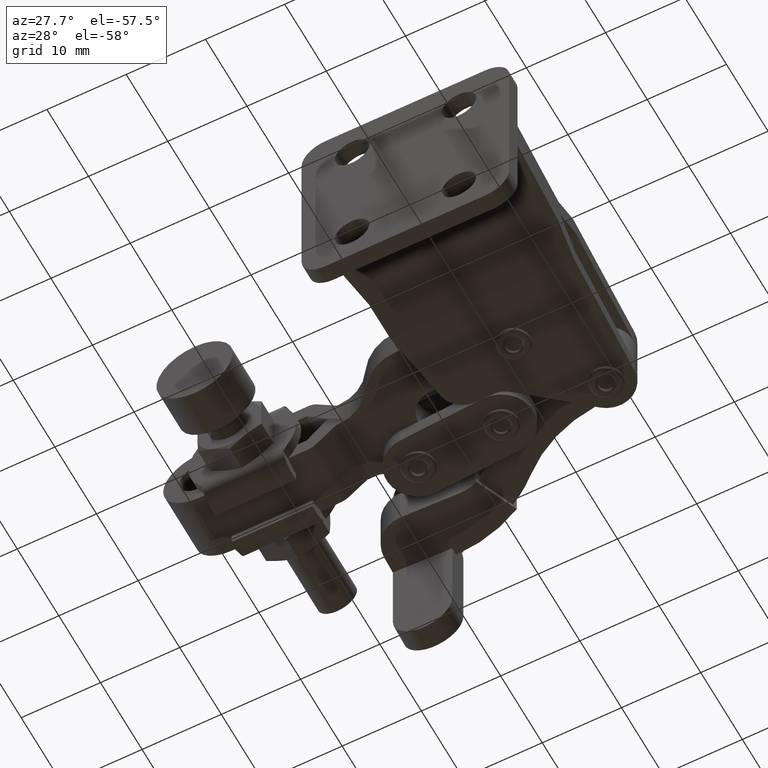
[diagram: clean part render]
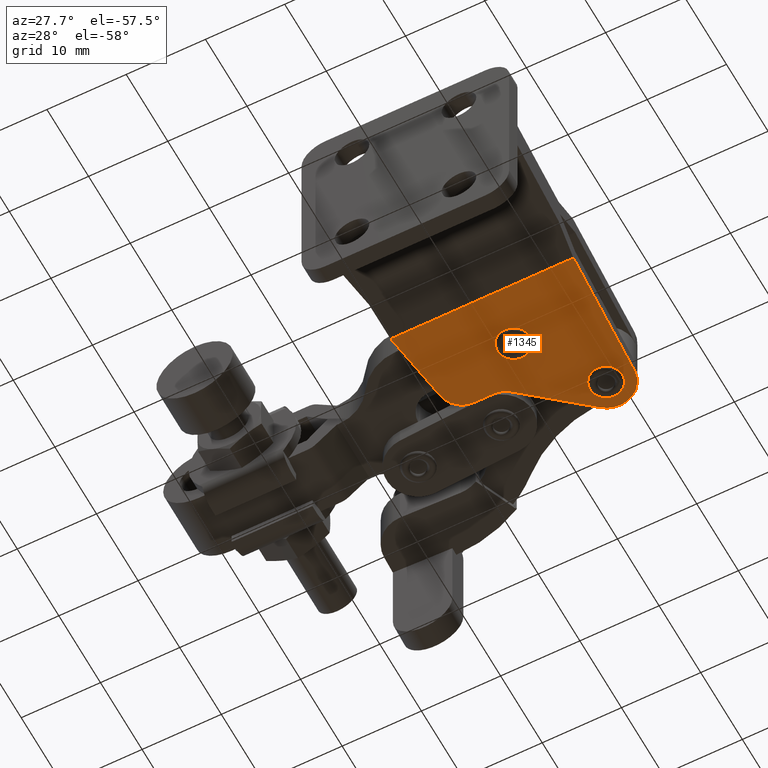
[diagram: same view with one face highlighted and labeled with its STEP entity id]
A machine part, auxiliary view. The second image highlights one B-rep face of the part: STEP entity #1345.
In plain terms, the highlighted planar face has unit normal (-0, -0, 1).
Its self-contained STEP definition (entity closure, byte-faithful):
#85 = DIRECTION ( 'NONE',  ( 1.000000000000000000, 0.0000000000000000000, 0.0000000000000000000 ) ) ;
#106 = DIRECTION ( 'NONE',  ( -1.110223024625156500E-016, -5.551115123125782700E-017, 1.000000000000000000 ) ) ;
#114 = DIRECTION ( 'NONE',  ( -1.110223024625156500E-016, -5.551115123125782700E-017, 1.000000000000000000 ) ) ;
#127 = LINE ( 'NONE', #6865, #1684 ) ;
#141 = AXIS2_PLACEMENT_3D ( 'NONE', #9245, #4642, #85 ) ;
#588 = VERTEX_POINT ( 'NONE', #3752 ) ;
#718 = AXIS2_PLACEMENT_3D ( 'NONE', #4666, #106, #5440 ) ;
#889 = EDGE_LOOP ( 'NONE', ( #5322, #6979 ) ) ;
#995 = ORIENTED_EDGE ( 'NONE', *, *, #8149, .T. ) ;
#1037 = AXIS2_PLACEMENT_3D ( 'NONE', #7671, #3086, #8448 ) ;
#1070 = VECTOR ( 'NONE', #9351, 1000.000000000000000 ) ;
#1265 = VECTOR ( 'NONE', #8947, 999.9999999999998900 ) ;
#1345 = ADVANCED_FACE ( 'NONE', ( #7638, #7391, #3316 ), #4392, .F. ) ;
#1364 = AXIS2_PLACEMENT_3D ( 'NONE', #4543, #9902, #5319 ) ;
#1390 = VERTEX_POINT ( 'NONE', #9824 ) ;
#1459 = CARTESIAN_POINT ( 'NONE',  ( 26.38724091088785100, 59.48525046653188000, 7.149797007612749900 ) ) ;
#1467 = VERTEX_POINT ( 'NONE', #1545 ) ;
#1478 = EDGE_CURVE ( 'NONE', #588, #1467, #127, .T. ) ;
#1506 = EDGE_CURVE ( 'NONE', #4729, #6374, #3434, .T. ) ;
#1545 = CARTESIAN_POINT ( 'NONE',  ( 28.87884556464563000, 42.50000000000205300, 7.149797007612744600 ) ) ;
#1684 = VECTOR ( 'NONE', #7640, 1000.000000000000100 ) ;
#1807 = VECTOR ( 'NONE', #6749, 1000.000000000000000 ) ;
#1843 = ORIENTED_EDGE ( 'NONE', *, *, #5718, .T. ) ;
#1853 = AXIS2_PLACEMENT_3D ( 'NONE', #4506, #3881, #5929 ) ;
#1859 = CARTESIAN_POINT ( 'NONE',  ( 5.806083057177812800, 42.50000000000257900, 7.149797007612742800 ) ) ;
#2049 = VERTEX_POINT ( 'NONE', #1459 ) ;
#2134 = DIRECTION ( 'NONE',  ( -1.000000000000000000, 2.259303855112193600E-014, -4.298886144612172800E-017 ) ) ;
#2135 = CARTESIAN_POINT ( 'NONE',  ( 10.14931738897831600, 54.30053318867221200, 7.149797007612744600 ) ) ;
#2173 = ORIENTED_EDGE ( 'NONE', *, *, #9556, .F. ) ;
#2224 = CARTESIAN_POINT ( 'NONE',  ( 22.59995602336487200, 57.91474953347260900, 7.149797007612749900 ) ) ;
#2480 = CARTESIAN_POINT ( 'NONE',  ( 33.49359846712606300, 42.50000000000195400, 7.149797007612744600 ) ) ;
#2646 = CARTESIAN_POINT ( 'NONE',  ( 19.65890011141560800, 59.24570187686033100, 7.149797007612744600 ) ) ;
#3086 = DIRECTION ( 'NONE',  ( 1.110223024625156500E-016, 5.551115123125782700E-017, -1.000000000000000000 ) ) ;
#3122 = CARTESIAN_POINT ( 'NONE',  ( 22.26438962142214400, 61.39826387187124400, 7.149797007612744600 ) ) ;
#3316 = FACE_BOUND ( 'NONE', #889, .T. ) ;
#3333 = LINE ( 'NONE', #2480, #1070 ) ;
#3434 = CIRCLE ( 'NONE', #1037, 2.049999999999999800 ) ;
#3529 = VECTOR ( 'NONE', #8008, 1000.000000000000100 ) ;
#3570 = ORIENTED_EDGE ( 'NONE', *, *, #5255, .T. ) ;
#3584 = CARTESIAN_POINT ( 'NONE',  ( 6.448856635775245900, 46.66936991513104300, 7.149797007612744600 ) ) ;
#3752 = CARTESIAN_POINT ( 'NONE',  ( 27.98844501468426300, 58.88986207894999600, 7.149797007612746400 ) ) ;
#3881 = DIRECTION ( 'NONE',  ( 1.110223024625156500E-016, 5.551115123125782700E-017, -1.000000000000000000 ) ) ;
#3968 = EDGE_CURVE ( 'NONE', #4822, #1390, #8788, .T. ) ;
#4112 = CARTESIAN_POINT ( 'NONE',  ( 24.49359846712636100, 58.70000000000224100, 7.149797007612749900 ) ) ;
#4263 = ORIENTED_EDGE ( 'NONE', *, *, #8891, .T. ) ;
#4392 = PLANE ( 'NONE',  #5329 ) ;
#4405 = CARTESIAN_POINT ( 'NONE',  ( 33.49359846712631100, 54.30053318867172900, 7.149797007612746400 ) ) ;
#4506 = CARTESIAN_POINT ( 'NONE',  ( 12.64326700289278300, 57.19100421455836200, 7.149797007612744600 ) ) ;
#4543 = CARTESIAN_POINT ( 'NONE',  ( 24.49359846712636100, 58.70000000000224100, 7.149797007612749900 ) ) ;
#4642 = DIRECTION ( 'NONE',  ( 1.110223024625156500E-016, 5.551115123125782700E-017, -1.000000000000000000 ) ) ;
#4666 = CARTESIAN_POINT ( 'NONE',  ( 24.49359846712638200, 58.70000000000223400, 7.149797007612746400 ) ) ;
#4673 = CARTESIAN_POINT ( 'NONE',  ( 10.14931738897824700, 51.35705719645361000, 7.149797007612744600 ) ) ;
#4729 = VERTEX_POINT ( 'NONE', #6485 ) ;
#4822 = VERTEX_POINT ( 'NONE', #8120 ) ;
#4860 = DIRECTION ( 'NONE',  ( 0.9237280213470685500, 0.3830490080632368800, 0.0000000000000000000 ) ) ;
#5050 = EDGE_LOOP ( 'NONE', ( #4263, #995 ) ) ;
#5137 = CIRCLE ( 'NONE', #7820, 2.049999999999999800 ) ;
#5146 = CIRCLE ( 'NONE', #1364, 2.049999999999999800 ) ;
#5161 = CARTESIAN_POINT ( 'NONE',  ( 33.49359846712606300, 42.50000000000195400, 7.149797007612744600 ) ) ;
#5255 = EDGE_CURVE ( 'NONE', #8388, #8717, #7130, .T. ) ;
#5319 = DIRECTION ( 'NONE',  ( 0.9237280213470685500, 0.3830490080632368800, 0.0000000000000000000 ) ) ;
#5322 = ORIENTED_EDGE ( 'NONE', *, *, #1506, .F. ) ;
#5329 = AXIS2_PLACEMENT_3D ( 'NONE', #5161, #6698, #2134 ) ;
#5400 = AXIS2_PLACEMENT_3D ( 'NONE', #4673, #114, #5448 ) ;
#5440 = DIRECTION ( 'NONE',  ( -1.000000000000000000, 2.379049338482516400E-014, 0.0000000000000000000 ) ) ;
#5448 = DIRECTION ( 'NONE',  ( -1.000000000000000000, 2.357380838930206100E-014, 0.0000000000000000000 ) ) ;
#5490 = VERTEX_POINT ( 'NONE', #3122 ) ;
#5523 = ORIENTED_EDGE ( 'NONE', *, *, #3968, .F. ) ;
#5718 = EDGE_CURVE ( 'NONE', #4822, #5490, #7610, .T. ) ;
#5929 = DIRECTION ( 'NONE',  ( -1.000000000000000000, 2.160549079228991000E-014, 0.0000000000000000000 ) ) ;
#6131 = CIRCLE ( 'NONE', #718, 3.499999999999944000 ) ;
#6374 = VERTEX_POINT ( 'NONE', #8796 ) ;
#6485 = CARTESIAN_POINT ( 'NONE',  ( 19.58724091088764000, 50.18525046653202500, 7.149797007612742800 ) ) ;
#6698 = DIRECTION ( 'NONE',  ( -4.298886144612298500E-017, -5.551115123125936800E-017, 1.000000000000000000 ) ) ;
#6749 = DIRECTION ( 'NONE',  ( -1.000000000000000000, 2.120189298322567500E-014, -4.298886144612179000E-017 ) ) ;
#6865 = CARTESIAN_POINT ( 'NONE',  ( 28.89242522247122500, 42.25003528597483200, 7.149797007612744600 ) ) ;
#6901 = CARTESIAN_POINT ( 'NONE',  ( 7.248625882204061500, 51.85709689417313200, 7.149797007612744600 ) ) ;
#6927 = CIRCLE ( 'NONE', #141, 2.049999999999999800 ) ;
#6979 = ORIENTED_EDGE ( 'NONE', *, *, #8711, .F. ) ;
#7097 = CIRCLE ( 'NONE', #5400, 2.943475992218610200 ) ;
#7100 = VERTEX_POINT ( 'NONE', #2135 ) ;
#7130 = LINE ( 'NONE', #3584, #1265 ) ;
#7231 = EDGE_CURVE ( 'NONE', #7100, #8717, #7097, .T. ) ;
#7391 = FACE_OUTER_BOUND ( 'NONE', #8164, .T. ) ;
#7580 = VERTEX_POINT ( 'NONE', #2224 ) ;
#7610 = LINE ( 'NONE', #2646, #3529 ) ;
#7638 = FACE_BOUND ( 'NONE', #5050, .T. ) ;
#7640 = DIRECTION ( 'NONE',  ( 0.05424630827078987000, -0.9985275850165533700, -4.110789046768039200E-017 ) ) ;
#7671 = CARTESIAN_POINT ( 'NONE',  ( 17.69359846712615100, 49.40000000000238600, 7.149797007612742800 ) ) ;
#7685 = EDGE_CURVE ( 'NONE', #588, #5490, #6131, .T. ) ;
#7686 = ORIENTED_EDGE ( 'NONE', *, *, #9782, .T. ) ;
#7820 = AXIS2_PLACEMENT_3D ( 'NONE', #4112, #9467, #4860 ) ;
#7882 = ORIENTED_EDGE ( 'NONE', *, *, #7685, .F. ) ;
#7892 = LINE ( 'NONE', #4405, #1807 ) ;
#8008 = DIRECTION ( 'NONE',  ( 0.7709325348197282300, 0.6369168130583683400, 6.084989850284627800E-017 ) ) ;
#8120 = CARTESIAN_POINT ( 'NONE',  ( 14.62539733609403400, 55.08720239554329400, 7.149797007612744600 ) ) ;
#8149 = EDGE_CURVE ( 'NONE', #7580, #2049, #5146, .T. ) ;
#8164 = EDGE_LOOP ( 'NONE', ( #1843, #7882, #9607, #7686, #3570, #9395, #2173, #5523 ) ) ;
#8388 = VERTEX_POINT ( 'NONE', #1859 ) ;
#8448 = DIRECTION ( 'NONE',  ( 1.000000000000000000, 0.0000000000000000000, 0.0000000000000000000 ) ) ;
#8711 = EDGE_CURVE ( 'NONE', #6374, #4729, #6927, .T. ) ;
#8717 = VERTEX_POINT ( 'NONE', #6901 ) ;
#8788 = CIRCLE ( 'NONE', #1853, 2.890471025886199600 ) ;
#8796 = CARTESIAN_POINT ( 'NONE',  ( 15.79995602336466100, 48.61474953347275400, 7.149797007612742800 ) ) ;
#8891 = EDGE_CURVE ( 'NONE', #2049, #7580, #5137, .T. ) ;
#8947 = DIRECTION ( 'NONE',  ( 0.1523656313902065600, 0.9883241949740296800, 4.954601491461754900E-017 ) ) ;
#9245 = CARTESIAN_POINT ( 'NONE',  ( 17.69359846712615100, 49.40000000000238600, 7.149797007612742800 ) ) ;
#9351 = DIRECTION ( 'NONE',  ( -1.000000000000000000, 2.259303855112193600E-014, -4.298886144612172800E-017 ) ) ;
#9395 = ORIENTED_EDGE ( 'NONE', *, *, #7231, .F. ) ;
#9467 = DIRECTION ( 'NONE',  ( 0.0000000000000000000, -0.0000000000000000000, 1.000000000000000000 ) ) ;
#9556 = EDGE_CURVE ( 'NONE', #1390, #7100, #7892, .T. ) ;
#9607 = ORIENTED_EDGE ( 'NONE', *, *, #1478, .T. ) ;
#9782 = EDGE_CURVE ( 'NONE', #1467, #8388, #3333, .T. ) ;
#9824 = CARTESIAN_POINT ( 'NONE',  ( 12.64326700289271900, 54.30053318867216200, 7.149797007612744600 ) ) ;
#9902 = DIRECTION ( 'NONE',  ( 0.0000000000000000000, -0.0000000000000000000, 1.000000000000000000 ) ) ;